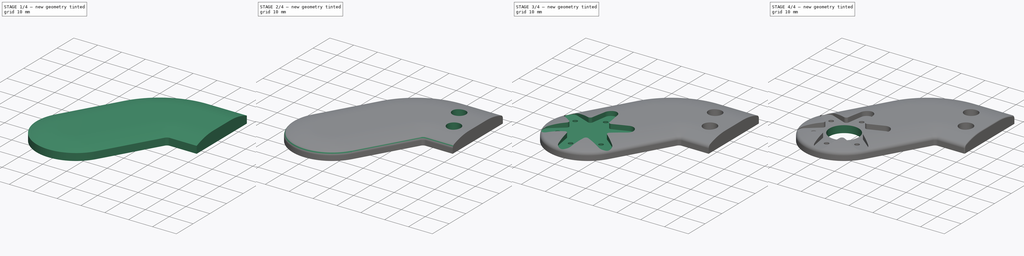
[diagram: build sequence overview — one tinted view per stage of 4, left to right]
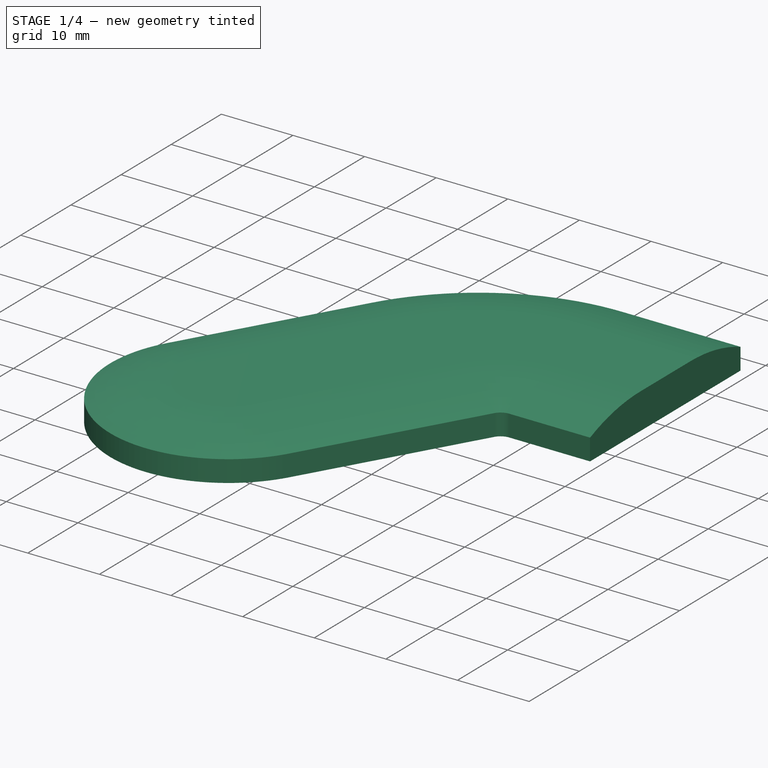
[diagram: stage 1 of 4 — iso view after this stage's code; geometry added in this stage tinted green]
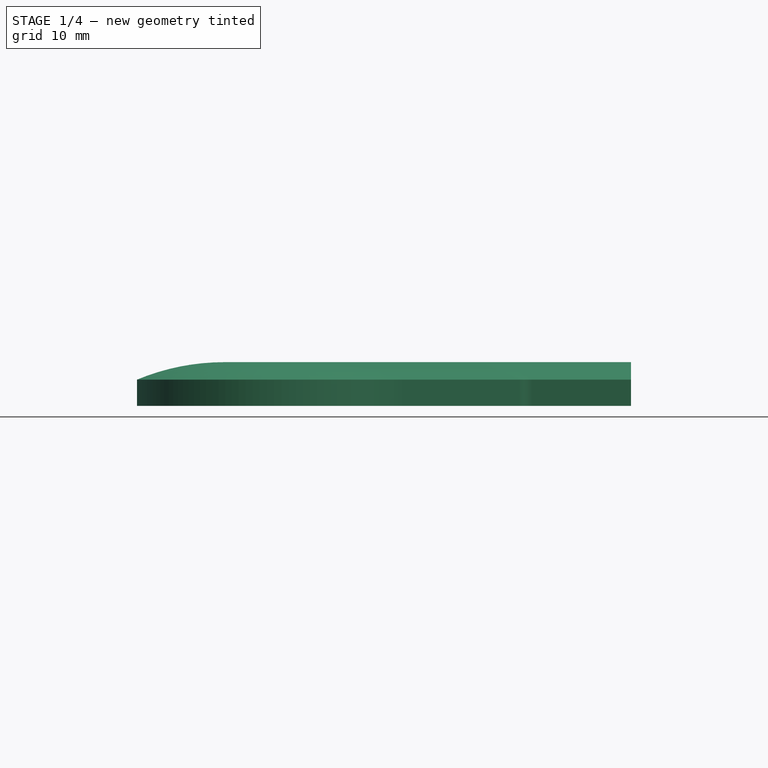
[diagram: stage 1 of 4 — front view after this stage's code; geometry added in this stage tinted green]
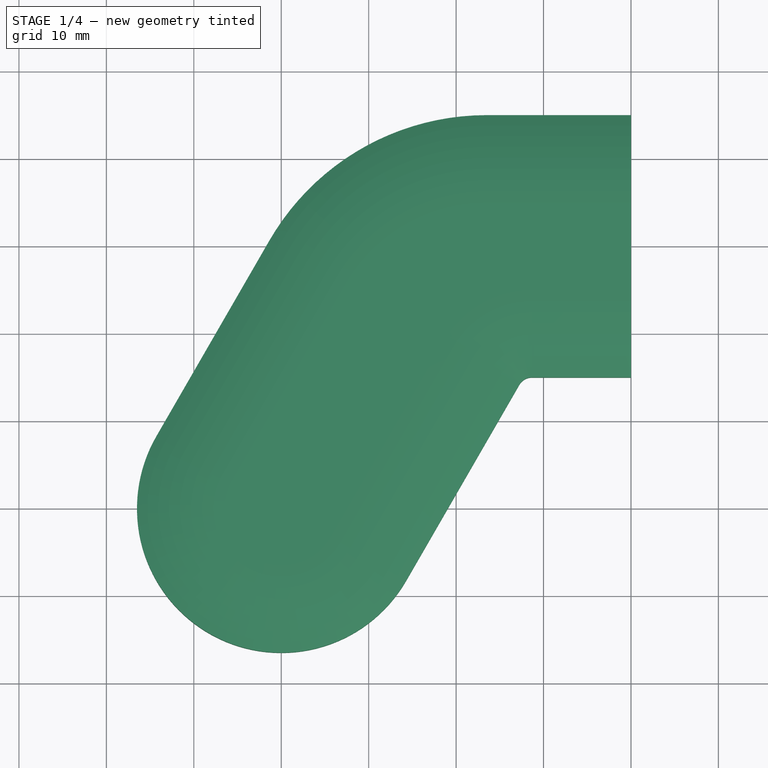
[diagram: stage 1 of 4 — top view after this stage's code; geometry added in this stage tinted green]
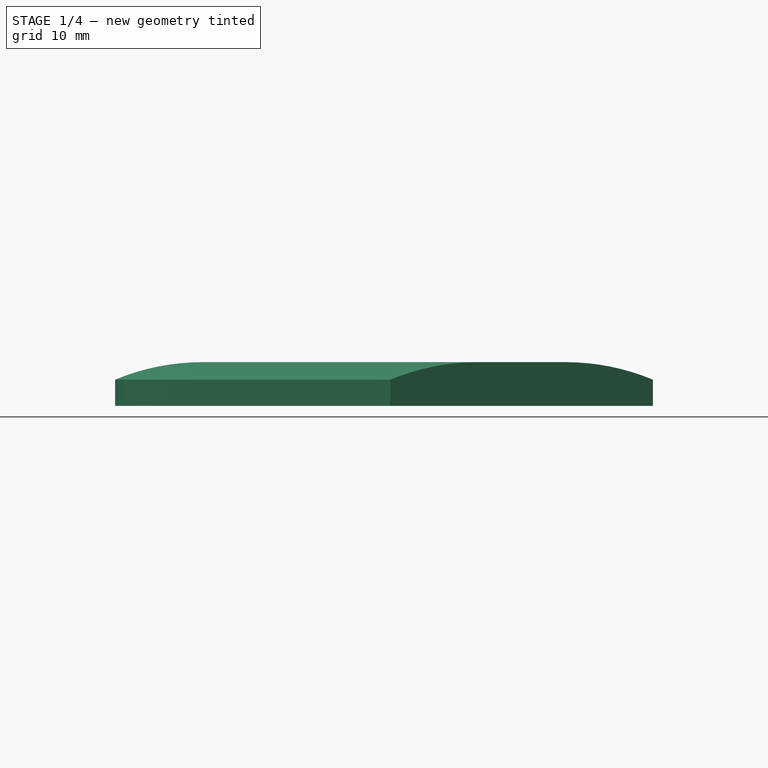
[diagram: stage 1 of 4 — right view after this stage's code; geometry added in this stage tinted green]
FCSTD DOCUMENT  (FreeCAD 0.18R4 (GitTag))
Label: Limb_Servohorn_Mount_long_v4
License: CreativeCommons Attribution-NonCommercial
LicenseURL: http://creativecommons.org/licenses/by-nc/4.0/
objects: Sketcher::SketchObject×7, PartDesign::Pocket×5, PartDesign::Fillet×3, PartDesign::Pad×1, PartDesign::SubtractivePipe×1, PartDesign::Body×1
note: 25 computed .brp shape members not serialized (recipe doc carries the construction recipe); baked Part::Feature solids carry a one-line shape summary decoded from their .brp

FEATURE [Sketcher::SketchObject] Sketch
  MapMode = 5
  Support = -> [XY_Plane]
  sketch-geometry (9):
    g0: ArcOfCircle CenterX=0 CenterY=0 CenterZ=0 NormalX=0 NormalY=0 NormalZ=1 AngleXU=0 Radius=16.5 StartAngle=2.61799 EndAngle=5.75959
    g1: LineSegment StartX=-14.2894 StartY=8.25 StartZ=0 EndX=-1.3577 EndY=30.6484 EndZ=0
    g2: ArcOfCircle CenterX=23.5 CenterY=16.2968 CenterZ=0 NormalX=0 NormalY=0 NormalZ=1 AngleXU=0 Radius=28.7032 StartAngle=1.5708 EndAngle=2.61799
    g3: LineSegment StartX=23.5 StartY=45 StartZ=0 EndX=40 EndY=45 EndZ=0
    g4: LineSegment StartX=40 StartY=45 StartZ=0 EndX=40 EndY=15 EndZ=0
    g5: LineSegment StartX=40 StartY=15 StartZ=0 EndX=28.6962 EndY=15 EndZ=0
    g6: ArcOfCircle CenterX=28.6962 CenterY=13.2968 CenterZ=0 NormalX=0 NormalY=0 NormalZ=1 AngleXU=0 Radius=1.70319 StartAngle=1.5708 EndAngle=2.61799
    g7: LineSegment StartX=27.2211 StartY=14.1484 StartZ=0 EndX=14.2894 EndY=-8.25 EndZ=0
    g8: LineSegment [constr] StartX=-1.3577 StartY=30.6484 StartZ=0 EndX=27.2211 EndY=14.1484 EndZ=0
  constraints (21):
    c: Tangent(g0,g1) = 1.5708
    c: Tangent(g1,g2) = 1.5708
    c: Tangent(g2,g3) = 1.5708
    c: Perpendicular(g3,g4) = 4.71239
    c: Coincident(g4,g5)
    c: Horizontal(g5)
    c: Tangent(g5,g6) = -1.5708
    c: Tangent(g6,g7) = -1.5708
    c: Parallel(g7,g1)
    c: Radius(g0) = 16.5
    c: Horizontal(g3)
    c: DistanceY(g4,g4) = 30
    c: Tangent(g7,g0) = 1.5708
    c: DistanceX(g0,g4) = 40
    c: Coincident(g8,g1)
    c: Coincident(g8,g6)
    c: Perpendicular(g1,g8)
    c: DistanceX(g3,g3) = 16.5
    c: DistanceY(g0,g4) = 15
    c: Angle(g8) = -0.523599
    c: Coincident(g0,g-1)
FEATURE [PartDesign::Pad] Pad  label="Baseplate"
  Length = 5
  Length2 = 100
  Profile = -> Sketch
  Type = 0
FEATURE [Sketcher::SketchObject] Sketch001
  MapMode = 5
  Placement = pos=(40,-9.5e-15,0) rot=(0.57735,0.57735,0.57735;2.0944rad)
  Support = -> [Pad]
  sketch-geometry (4):
    g0: ArcOfCircle CenterX=35 CenterY=-21 CenterZ=0 NormalX=0 NormalY=0 NormalZ=1 AngleXU=0 Radius=26 StartAngle=1.17601 EndAngle=1.5708
    g1: LineSegment StartX=35 StartY=5 StartZ=0 EndX=35 EndY=6 EndZ=0
    g2: LineSegment StartX=35 StartY=6 StartZ=0 EndX=45 EndY=6 EndZ=0
    g3: LineSegment StartX=45 StartY=6 StartZ=0 EndX=45 EndY=3 EndZ=0
  constraints (13):
    c: Coincident(g1,g0)
    c: Vertical(g1)
    c: Horizontal(g2)
    c: Coincident(g3,g2)
    c: Vertical(g3)
    c: Coincident(g0,g3)
    c: Coincident(g1,g2)
    c: DistanceY(g1,g1) = 1
    c: DistanceY(g3,g3) = 3
    c: DistanceX(g2,g2) = 10
    c: DistanceY(g-1,g0) = 5
    c: DistanceX(g-1,g0) = 45
    c: Perpendicular(g0,g1)
FEATURE [PartDesign::SubtractivePipe] SubtractivePipe  label="Smooth Surfaces"
  AuxilleryCurvelinear = true
  AuxillerySpineTangent = false
  BaseFeature = -> Pad
  Binormal = (0,0,0)
  Mode = 0
  Profile = -> Sketch001
  Spine = -> Pad [Edge19,Edge22,Edge24,Edge4,Edge7,Edge10,Edge13]
  SpineTangent = false
  Transformation = 0
  Transition = 0
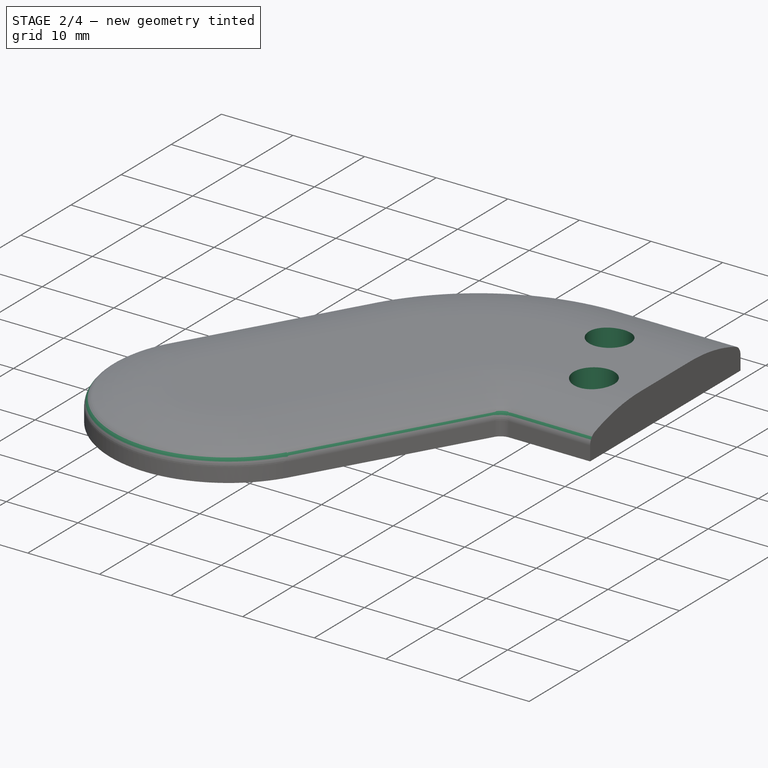
[diagram: stage 2 of 4 — iso view after this stage's code; geometry added in this stage tinted green]
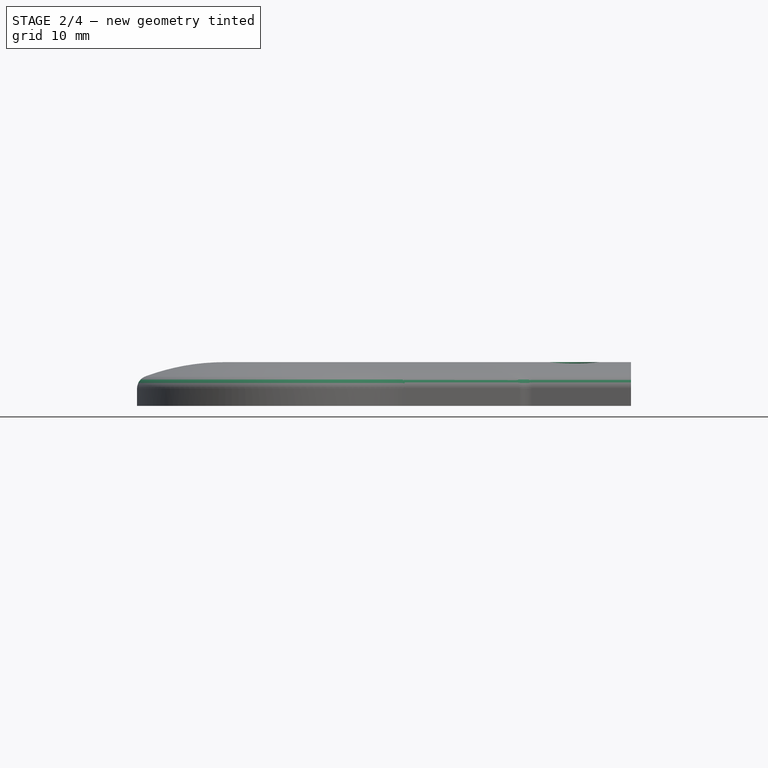
[diagram: stage 2 of 4 — front view after this stage's code; geometry added in this stage tinted green]
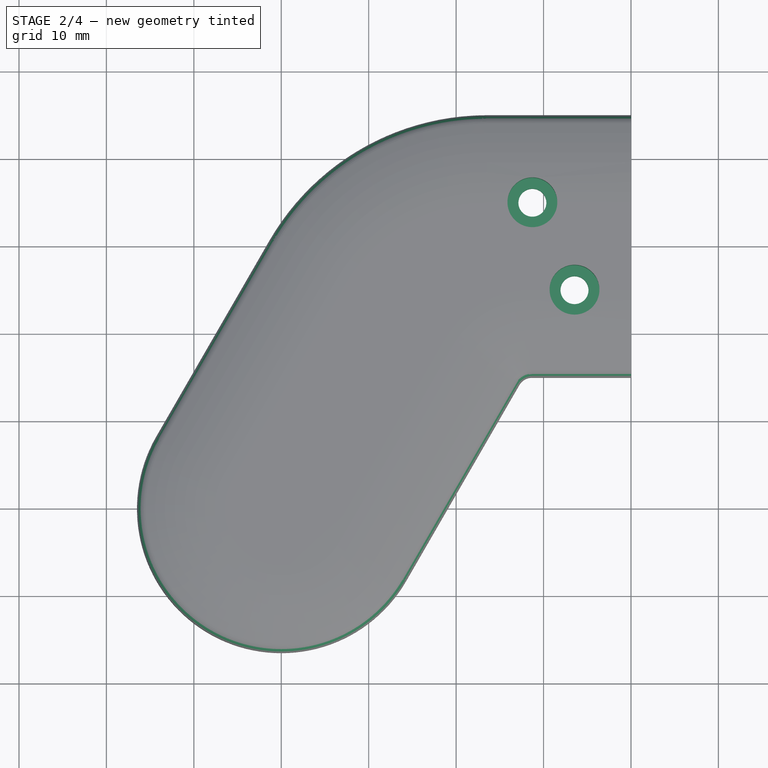
[diagram: stage 2 of 4 — top view after this stage's code; geometry added in this stage tinted green]
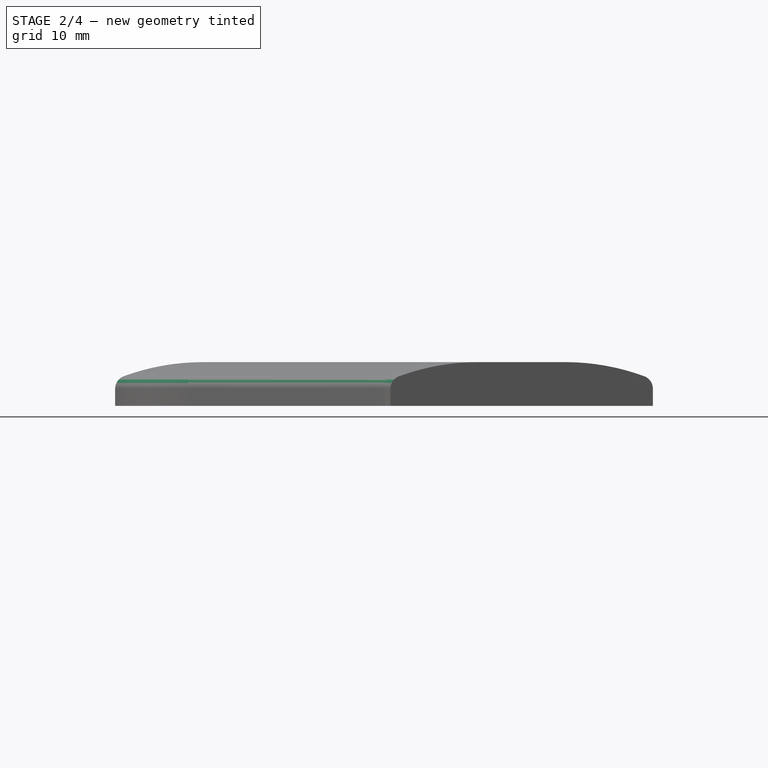
[diagram: stage 2 of 4 — right view after this stage's code; geometry added in this stage tinted green]
FEATURE [PartDesign::Fillet] Fillet  label="Smooth Edges"
  Base = -> SubtractivePipe [Edge21]
  BaseFeature = -> SubtractivePipe
  Radius = 1.5
FEATURE [Sketcher::SketchObject] Sketch133
  MapMode = 5
  Placement = pos=(0,0,5) rot=(0,0,1;0rad)
  Support = -> [SubtractivePipe]
  sketch-geometry (3):
    g0: Circle [constr] CenterX=0 CenterY=15 CenterZ=0 NormalX=0 NormalY=0 NormalZ=1 AngleXU=0 Radius=35
    g1: Circle CenterX=28.7228 CenterY=35 CenterZ=0 NormalX=0 NormalY=0 NormalZ=1 AngleXU=0 Radius=2.85
    g2: Circle CenterX=33.541 CenterY=25 CenterZ=0 NormalX=0 NormalY=0 NormalZ=1 AngleXU=0 Radius=2.85
  constraints (9):
    c: PointOnObject(g1,g0)
    c: PointOnObject(g2,g0)
    c: Radius(g0) = 35
    c: Equal(g2,g1)
    c: Radius(g1) = 2.85
    c: DistanceY(g2,g1) = 10
    c: DistanceY(g-1,g0) = 15
    c: DistanceY(g0,g2) = 10
    c: DistanceX(g-1,g0) = 0
FEATURE [PartDesign::Pocket] Pocket  label="Screwheads Montage"
  BaseFeature = -> Fillet
  Length = 3
  Length2 = 100
  Profile = -> Sketch133
  Type = 0
FEATURE [Sketcher::SketchObject] Sketch134
  MapMode = 5
  Placement = pos=(0,0,2) rot=(0,0,1;0rad)
  Support = -> [Pocket]
  sketch-geometry (3):
    g0: Circle [constr] CenterX=0 CenterY=15 CenterZ=0 NormalX=0 NormalY=0 NormalZ=1 AngleXU=0 Radius=35
    g1: Circle CenterX=28.7228 CenterY=35 CenterZ=0 NormalX=0 NormalY=0 NormalZ=1 AngleXU=0 Radius=1.6
    g2: Circle CenterX=33.541 CenterY=25 CenterZ=0 NormalX=0 NormalY=0 NormalZ=1 AngleXU=0 Radius=1.6
  constraints (9):
    c: Radius(g0) = 35
    c: PointOnObject(g1,g0)
    c: PointOnObject(g2,g0)
    c: Equal(g2,g1)
    c: Radius(g2) = 1.6
    c: DistanceY(g2,g1) = 10
    c: DistanceY(g-1,g0) = 15
    c: DistanceY(g0,g2) = 10
    c: DistanceX(g-1,g0) = 0
FEATURE [PartDesign::Pocket] Pocket001  label="Screwholes Montage"
  BaseFeature = -> Pocket
  Length = 3
  Length2 = 100
  Profile = -> Sketch134
  Type = 0
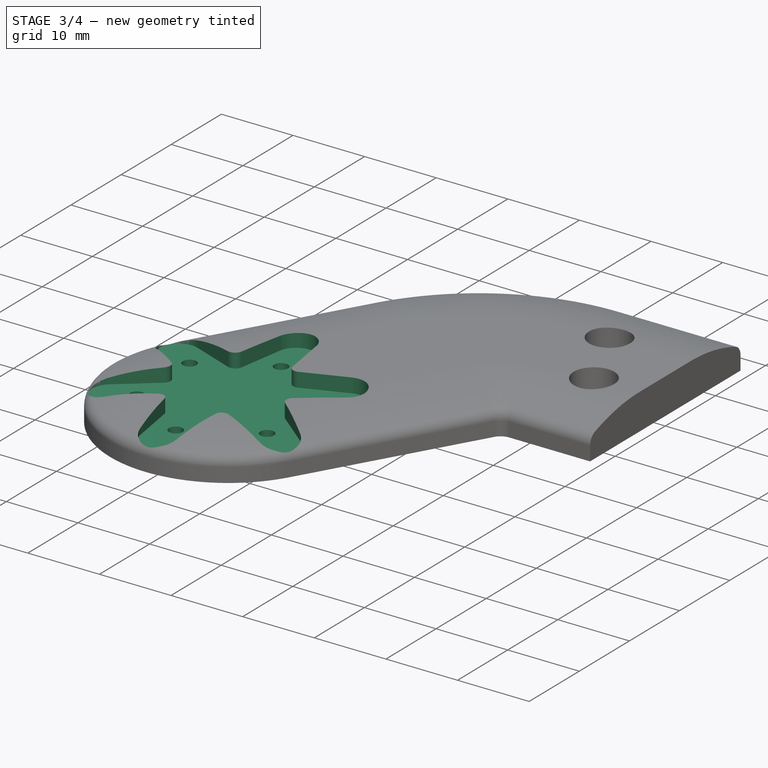
[diagram: stage 3 of 4 — iso view after this stage's code; geometry added in this stage tinted green]
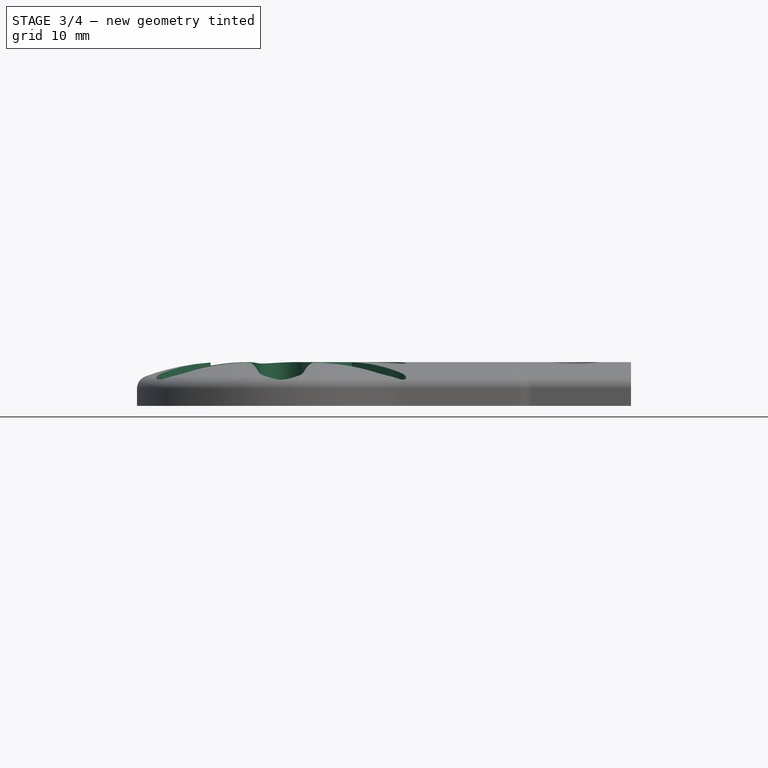
[diagram: stage 3 of 4 — front view after this stage's code; geometry added in this stage tinted green]
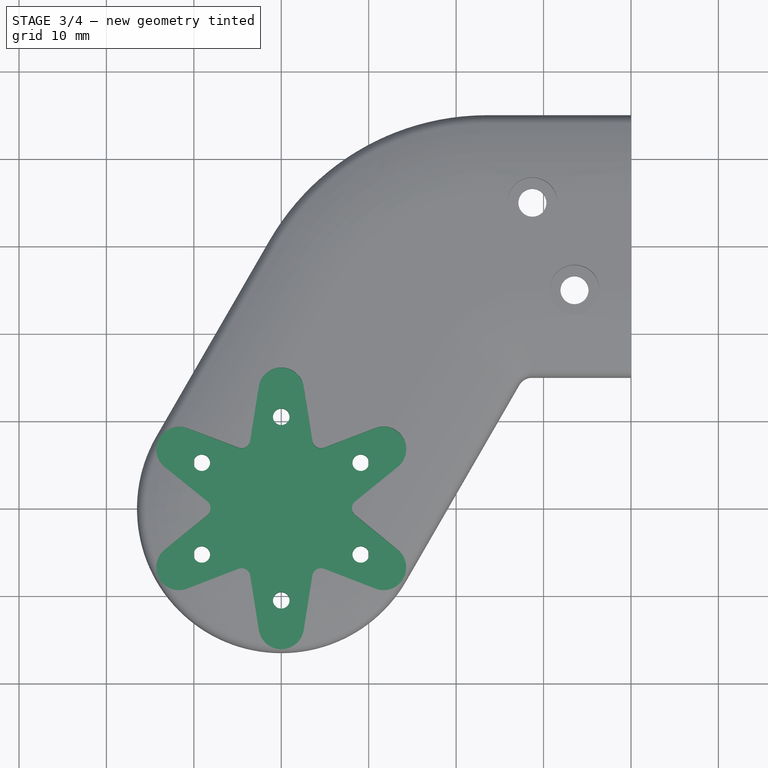
[diagram: stage 3 of 4 — top view after this stage's code; geometry added in this stage tinted green]
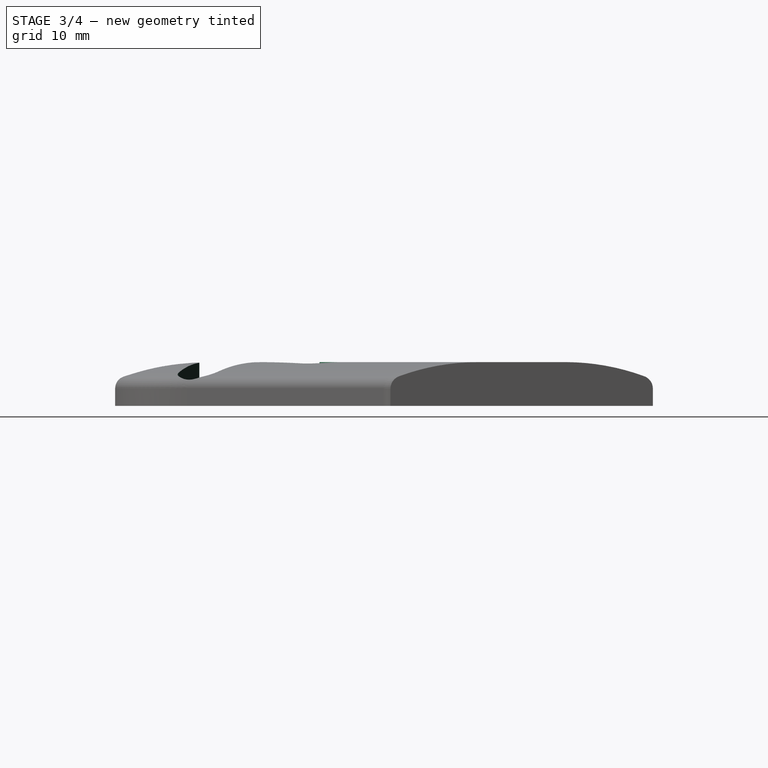
[diagram: stage 3 of 4 — right view after this stage's code; geometry added in this stage tinted green]
FEATURE [Sketcher::SketchObject] Sketch135
  MapMode = 5
  Placement = pos=(0,0,5) rot=(0,0,1;0rad)
  Support = -> [Fillet]
  sketch-geometry (33):
    g0: LineSegment [constr] StartX=11.6913 StartY=6.75 StartZ=0 EndX=0 EndY=13.5 EndZ=0
    g1: LineSegment [constr] StartX=0 StartY=13.5 StartZ=0 EndX=-11.6913 EndY=6.75 EndZ=0
    g2: LineSegment [constr] StartX=-11.6913 StartY=6.75 StartZ=0 EndX=-11.6913 EndY=-6.75 EndZ=0
    g3: LineSegment [constr] StartX=-11.6913 StartY=-6.75 StartZ=0 EndX=0 EndY=-13.5 EndZ=0
    g4: LineSegment [constr] StartX=-6e-16 StartY=-13.5 StartZ=0 EndX=11.6913 EndY=-6.75 EndZ=0
    g5: LineSegment [constr] StartX=11.6913 StartY=-6.75 StartZ=0 EndX=11.6913 EndY=6.75 EndZ=0
    g6: Circle [constr] CenterX=0 CenterY=0 CenterZ=0 NormalX=0 NormalY=0 NormalZ=1 AngleXU=0 Radius=13.5
    g7: LineSegment [constr] StartX=7.5 StartY=9e-16 StartZ=0 EndX=3.75 EndY=6.49519 EndZ=0
    g8: LineSegment [constr] StartX=3.75 StartY=6.49519 StartZ=0 EndX=-3.75 EndY=6.49519 EndZ=0
    g9: LineSegment [constr] StartX=-3.75 StartY=6.49519 StartZ=0 EndX=-7.5 EndY=-9e-16 EndZ=0
    g10: LineSegment [constr] StartX=-7.5 StartY=-9e-16 StartZ=0 EndX=-3.75 EndY=-6.49519 EndZ=0
    g11: LineSegment [constr] StartX=-3.75 StartY=-6.49519 StartZ=0 EndX=3.75 EndY=-6.49519 EndZ=0
    g12: LineSegment [constr] StartX=3.75 StartY=-6.49519 StartZ=0 EndX=7.5 EndY=9e-16 EndZ=0
    g13: Circle [constr] CenterX=0 CenterY=0 CenterZ=0 NormalX=0 NormalY=0 NormalZ=1 AngleXU=0 Radius=7.5
    g14: ArcOfCircle CenterX=11.6913 CenterY=-6.75 CenterZ=0 NormalX=0 NormalY=0 NormalZ=1 AngleXU=0 Radius=2.6 StartAngle=4.34694 EndAngle=7.17223
    g15: ArcOfCircle CenterX=-6e-16 CenterY=-13.5 CenterZ=0 NormalX=0 NormalY=0 NormalZ=1 AngleXU=0 Radius=2.6 StartAngle=3.29974 EndAngle=6.12503
    g16: ArcOfCircle CenterX=-11.6913 CenterY=-6.75 CenterZ=0 NormalX=0 NormalY=0 NormalZ=1 AngleXU=0 Radius=2.6 StartAngle=2.25255 EndAngle=5.07784
    g17: ArcOfCircle CenterX=-11.6913 CenterY=6.75 CenterZ=0 NormalX=0 NormalY=0 NormalZ=1 AngleXU=0 Radius=2.6 StartAngle=1.20535 EndAngle=4.03064
    g18: ArcOfCircle CenterX=0 CenterY=13.5 CenterZ=0 NormalX=0 NormalY=0 NormalZ=1 AngleXU=0 Radius=2.6 StartAngle=0.15815 EndAngle=2.98344
    g19: ArcOfCircle CenterX=11.6913 CenterY=6.75 CenterZ=0 NormalX=0 NormalY=0 NormalZ=1 AngleXU=0 Radius=2.6 StartAngle=5.39414 EndAngle=8.21943
    g20: LineSegment StartX=13.3297 StartY=4.73117 StartZ=0 EndX=7.5 EndY=9e-16 EndZ=0
    g21: LineSegment StartX=7.5 StartY=9e-16 StartZ=0 EndX=13.3297 EndY=-4.73117 EndZ=0
    g22: LineSegment StartX=10.7622 StartY=-9.17831 StartZ=0 EndX=3.75 EndY=-6.49519 EndZ=0
    g23: LineSegment StartX=3.75 StartY=-6.49519 StartZ=0 EndX=2.56755 EndY=-13.9095 EndZ=0
    g24: LineSegment StartX=-2.56755 StartY=-13.9095 StartZ=0 EndX=-3.75 EndY=-6.49519 EndZ=0
    g25: LineSegment StartX=-3.75 StartY=-6.49519 StartZ=0 EndX=-10.7622 EndY=-9.17831 EndZ=0
    g26: LineSegment StartX=-13.3297 StartY=-4.73117 StartZ=0 EndX=-7.5 EndY=-9e-16 EndZ=0
    g27: LineSegment StartX=-7.5 StartY=-9e-16 StartZ=0 EndX=-13.3297 EndY=4.73117 EndZ=0
    g28: LineSegment StartX=-10.7622 StartY=9.17831 StartZ=0 EndX=-3.75 EndY=6.49519 EndZ=0
    g29: LineSegment StartX=-3.75 StartY=6.49519 StartZ=0 EndX=-2.56755 EndY=13.9095 EndZ=0
    g30: LineSegment StartX=2.56755 StartY=13.9095 StartZ=0 EndX=3.75 EndY=6.49519 EndZ=0
    g31: LineSegment StartX=3.75 StartY=6.49519 StartZ=0 EndX=10.7622 EndY=9.17831 EndZ=0
    g32: LineSegment [constr] StartX=11.6913 StartY=6.75 StartZ=0 EndX=-11.6913 EndY=-6.75 EndZ=0
  constraints (70):
    c: Coincident(g0,g1)
    c: Coincident(g1,g2)
    c: Coincident(g2,g3)
    c: Coincident(g3,g4)
    c: Coincident(g4,g5)
    c: Coincident(g5,g0)
    c: Equal(g0, g1-g5) x5
    c: PointOnObject(g0,g6)
    c: PointOnObject(g1,g6)
    c: PointOnObject(g2,g6)
    c: PointOnObject(g3,g6)
    c: PointOnObject(g4,g6)
    c: PointOnObject(g5,g6)
    c: Coincident(g6,g-1)
    c: Radius(g6) = 13.5
    c: Coincident(g7,g8)
    c: Coincident(g8,g9)
    c: Coincident(g9,g10)
    c: Coincident(g10,g11)
    c: Coincident(g11,g12)
    c: Coincident(g12,g7)
    c: Equal(g7, g8-g12) x5
    c: PointOnObject(g7,g13)
    c: PointOnObject(g8,g13)
    c: PointOnObject(g9,g13)
    c: PointOnObject(g10,g13)
    c: PointOnObject(g11,g13)
    c: PointOnObject(g12,g13)
    c: Coincident(g13,g-1)
    c: Radius(g13) = 7.5
    c: Coincident(g14,g4)
    c: Coincident(g15,g3)
    c: Coincident(g16,g2)
    c: Coincident(g17,g1)
    c: Coincident(g18,g0)
    c: Coincident(g19,g0)
    c: Coincident(g20,g7)
    c: Coincident(g21,g20)
    c: Coincident(g22,g11)
    c: Coincident(g23,g22)
    c: Coincident(g24,g10)
    c: Coincident(g25,g24)
    c: Coincident(g26,g9)
    c: Coincident(g28,g8)
    c: Coincident(g29,g28)
    c: Coincident(g30,g7)
    c: Coincident(g31,g30)
    c: Tangent(g22,g14) = 1.5708
    c: Tangent(g23,g15) = 1.5708
    c: Tangent(g24,g15) = 1.5708
    c: Tangent(g26,g16) = 1.5708
    c: Tangent(g21,g14) = 1.5708
    c: Tangent(g16,g25) = 1.5708
    c: Tangent(g29,g18) = 1.5708
    c: Tangent(g30,g18) = 1.5708
    c: Tangent(g31,g19) = 1.5708
    c: Tangent(g20,g19) = 1.5708
    c: Tangent(g27,g17) = 1.5708
    c: Tangent(g17,g28) = 1.5708
    c: Coincident(g27,g26)
    c: Equal(g14,g15)
    c: Equal(g15,g16)
    c: Equal(g16,g17)
    c: Equal(g17,g18)
    c: Equal(g18,g19)
    c: Radius(g14) = 2.6
    c: Coincident(g32,g19)
    c: Coincident(g32,g16)
    c: Perpendicular(g32,g7)
    c: PointOnObject(g18,g-2)
FEATURE [PartDesign::Pocket] Pocket002  label="Servohorn"
  BaseFeature = -> Pocket001
  Length = 2
  Length2 = 100
  Profile = -> Sketch135
  Type = 0
FEATURE [PartDesign::Fillet] Fillet001  label="Smooth Servhohorn Edges"
  Base = -> Pocket002 [Edge124,Edge122,Edge129,Edge121,Edge136,Edge120]
  BaseFeature = -> Pocket002
  Radius = 1
FEATURE [Sketcher::SketchObject] Sketch136
  MapMode = 5
  Placement = pos=(0,0,3) rot=(0,0,1;0rad)
  Support = -> [Fillet001]
  sketch-geometry (14):
    g0: LineSegment [constr] StartX=0 StartY=10.5 StartZ=0 EndX=-9.09327 EndY=5.25 EndZ=0
    g1: LineSegment [constr] StartX=-9.09327 StartY=5.25 StartZ=0 EndX=-9.09327 EndY=-5.25 EndZ=0
    g2: LineSegment [constr] StartX=-9.09327 StartY=-5.25 StartZ=0 EndX=0 EndY=-10.5 EndZ=0
    g3: LineSegment [constr] StartX=0 StartY=-10.5 StartZ=0 EndX=9.09327 EndY=-5.25 EndZ=0
    g4: LineSegment [constr] StartX=9.09327 StartY=-5.25 StartZ=0 EndX=9.09327 EndY=5.25 EndZ=0
    g5: LineSegment [constr] StartX=9.09327 StartY=5.25 StartZ=0 EndX=0 EndY=10.5 EndZ=0
    g6: Circle [constr] CenterX=0 CenterY=0 CenterZ=0 NormalX=0 NormalY=0 NormalZ=1 AngleXU=0 Radius=10.5
    g7: LineSegment [constr] StartX=0 StartY=10.5 StartZ=0 EndX=0 EndY=-10.5 EndZ=0
    g8: Circle CenterX=0 CenterY=10.5 CenterZ=0 NormalX=0 NormalY=0 NormalZ=1 AngleXU=0 Radius=0.95
    g9: Circle CenterX=9.09327 CenterY=5.25 CenterZ=0 NormalX=0 NormalY=0 NormalZ=1 AngleXU=0 Radius=0.95
    g10: Circle CenterX=9.09327 CenterY=-5.25 CenterZ=0 NormalX=0 NormalY=0 NormalZ=1 AngleXU=0 Radius=0.95
    g11: Circle CenterX=0 CenterY=-10.5 CenterZ=0 NormalX=0 NormalY=0 NormalZ=1 AngleXU=0 Radius=0.95
    g12: Circle CenterX=-9.09327 CenterY=-5.25 CenterZ=0 NormalX=0 NormalY=0 NormalZ=1 AngleXU=0 Radius=0.95
    g13: Circle CenterX=-9.09327 CenterY=5.25 CenterZ=0 NormalX=0 NormalY=0 NormalZ=1 AngleXU=0 Radius=0.95
  constraints (30):
    c: Coincident(g0,g1)
    c: Coincident(g1,g2)
    c: Coincident(g2,g3)
    c: Coincident(g3,g4)
    c: Coincident(g4,g5)
    c: Coincident(g5,g0)
    c: Equal(g0, g1-g5) x5
    c: PointOnObject(g0,g6)
    c: PointOnObject(g1,g6)
    c: PointOnObject(g2,g6)
    c: PointOnObject(g3,g6)
    c: PointOnObject(g4,g6)
    c: PointOnObject(g5,g6)
    c: Coincident(g6,g-1)
    c: Coincident(g7,g0)
    c: Coincident(g7,g2)
    c: Radius(g6) = 10.5
    c: Coincident(g8,g0)
    c: Coincident(g9,g4)
    c: Coincident(g10,g3)
    c: Coincident(g11,g2)
    c: Coincident(g12,g1)
    c: Coincident(g13,g0)
    c: Equal(g13,g12)
    c: Equal(g12,g11)
    c: Equal(g11,g10)
    c: Equal(g10,g9)
    c: Equal(g9,g8)
    c: Radius(g8) = 0.95
    c: PointOnObject(g8,g-2)
FEATURE [PartDesign::Pocket] Pocket003  label="Servohorn Mounting Holes"
  BaseFeature = -> Fillet001
  Length = 3
  Length2 = 100
  Profile = -> Sketch136
  Type = 0
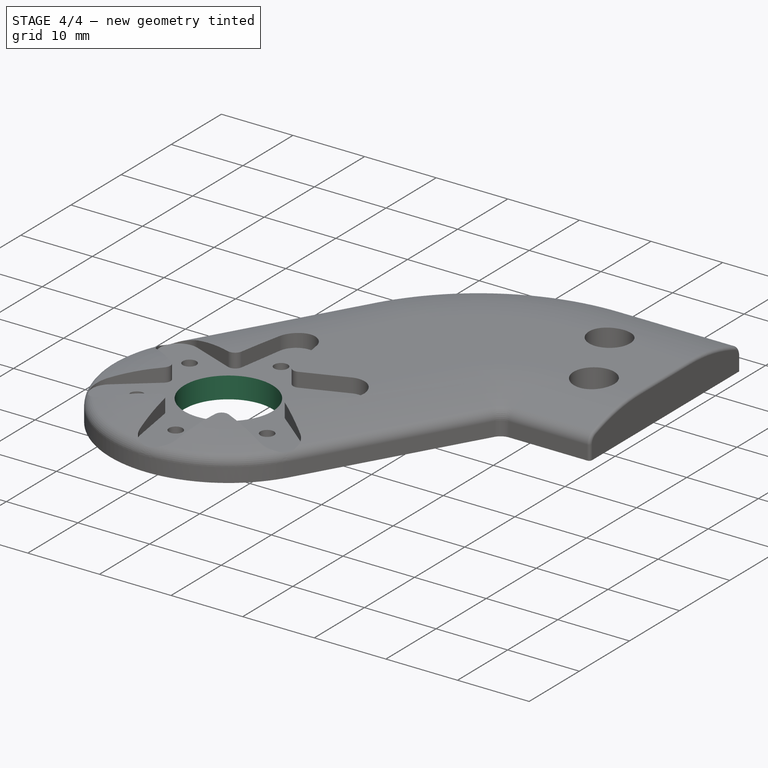
[diagram: stage 4 of 4 — iso view after this stage's code; geometry added in this stage tinted green]
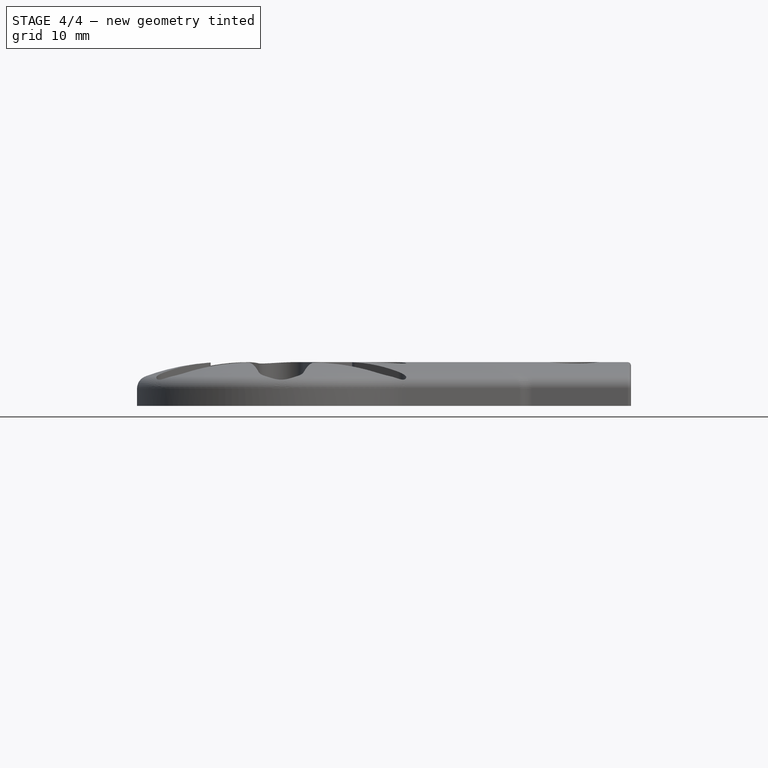
[diagram: stage 4 of 4 — front view after this stage's code; geometry added in this stage tinted green]
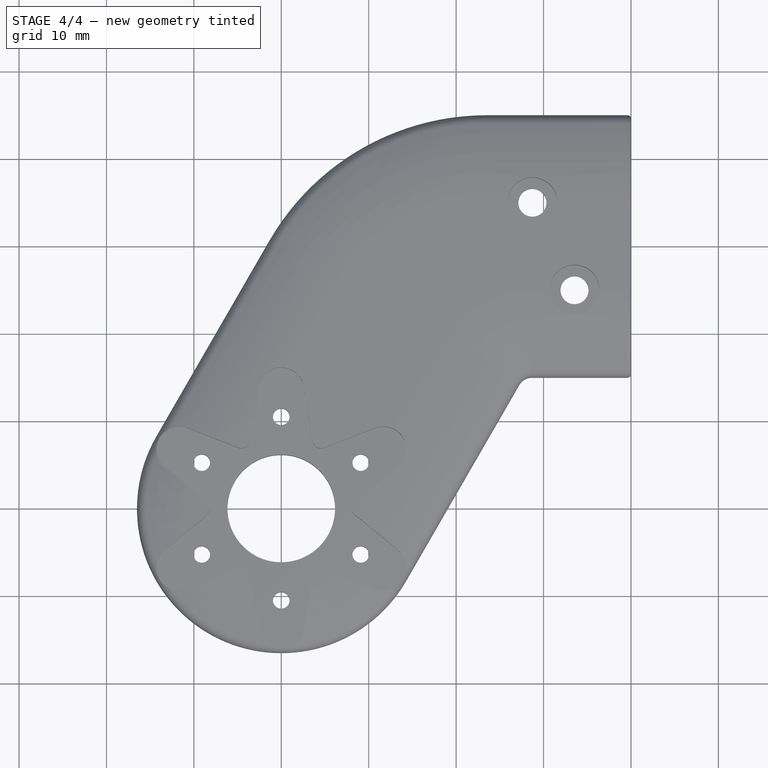
[diagram: stage 4 of 4 — top view after this stage's code; geometry added in this stage tinted green]
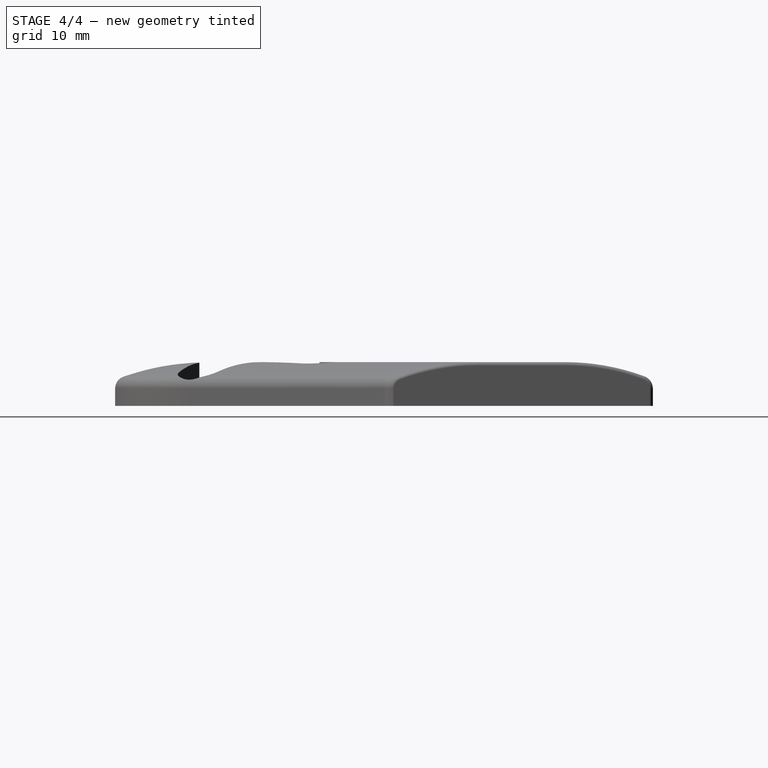
[diagram: stage 4 of 4 — right view after this stage's code; geometry added in this stage tinted green]
FEATURE [Sketcher::SketchObject] Sketch137
  MapMode = 5
  Placement = pos=(0,0,3) rot=(0,0,1;0rad)
  Support = -> [Pocket003]
  sketch-geometry (1):
    g0: Circle CenterX=0 CenterY=0 CenterZ=0 NormalX=0 NormalY=0 NormalZ=1 AngleXU=0 Radius=6.15
  constraints (2):
    c: Coincident(g0,g-1)
    c: Radius(g0) = 6.15
FEATURE [PartDesign::Pocket] Pocket004  label="Servohorn Axis"
  BaseFeature = -> Pocket003
  Length = 3
  Length2 = 100
  Profile = -> Sketch137
  Type = 0
FEATURE [PartDesign::Fillet] Fillet002  label="Smooth End Egde"
  Base = -> Pocket004 [Edge150]
  BaseFeature = -> Pocket004
  Radius = 0.4
FEATURE [PartDesign::Body] Body  label="Limb_Servohorn_Mount_long_v4"
  Group = -> [Sketch,Pad,Sketch001,SubtractivePipe,Fillet,Sketch133,Pocket,Sketch134,Pocket001,Sketch135,Pocket002,Fillet001,Sketch136,Pocket003,Sketch137,Pocket004,Fillet002]
  Origin = -> Origin
  Tip = -> Fillet002
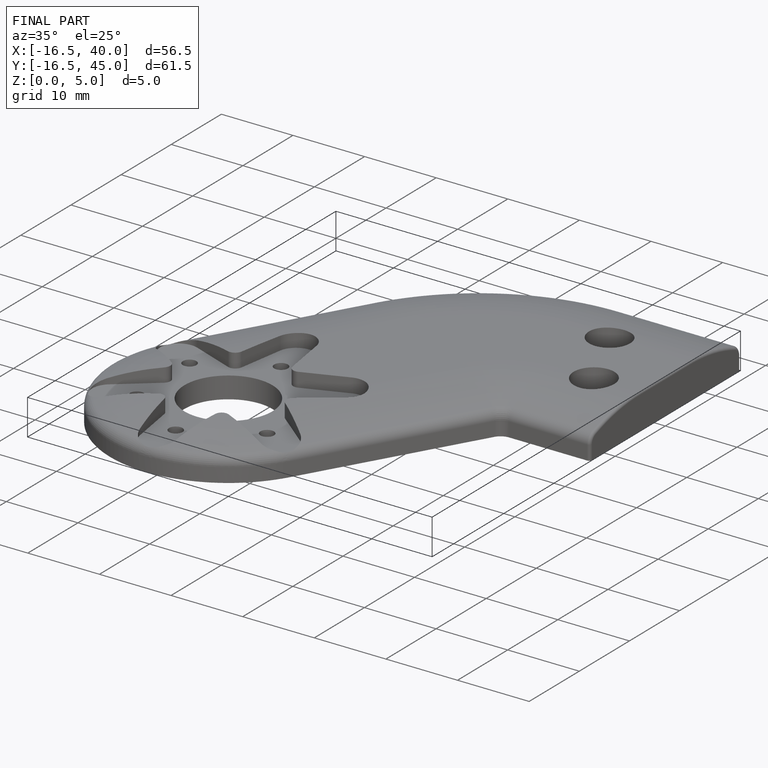
[diagram: finished part — iso view with bounding-box wireframe]
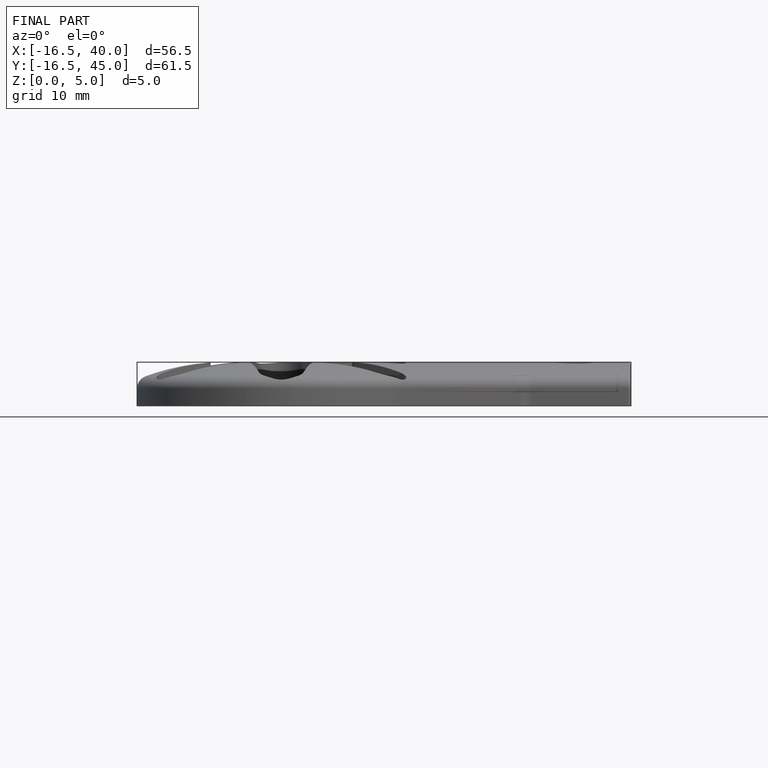
[diagram: finished part — front view with bounding-box wireframe]
